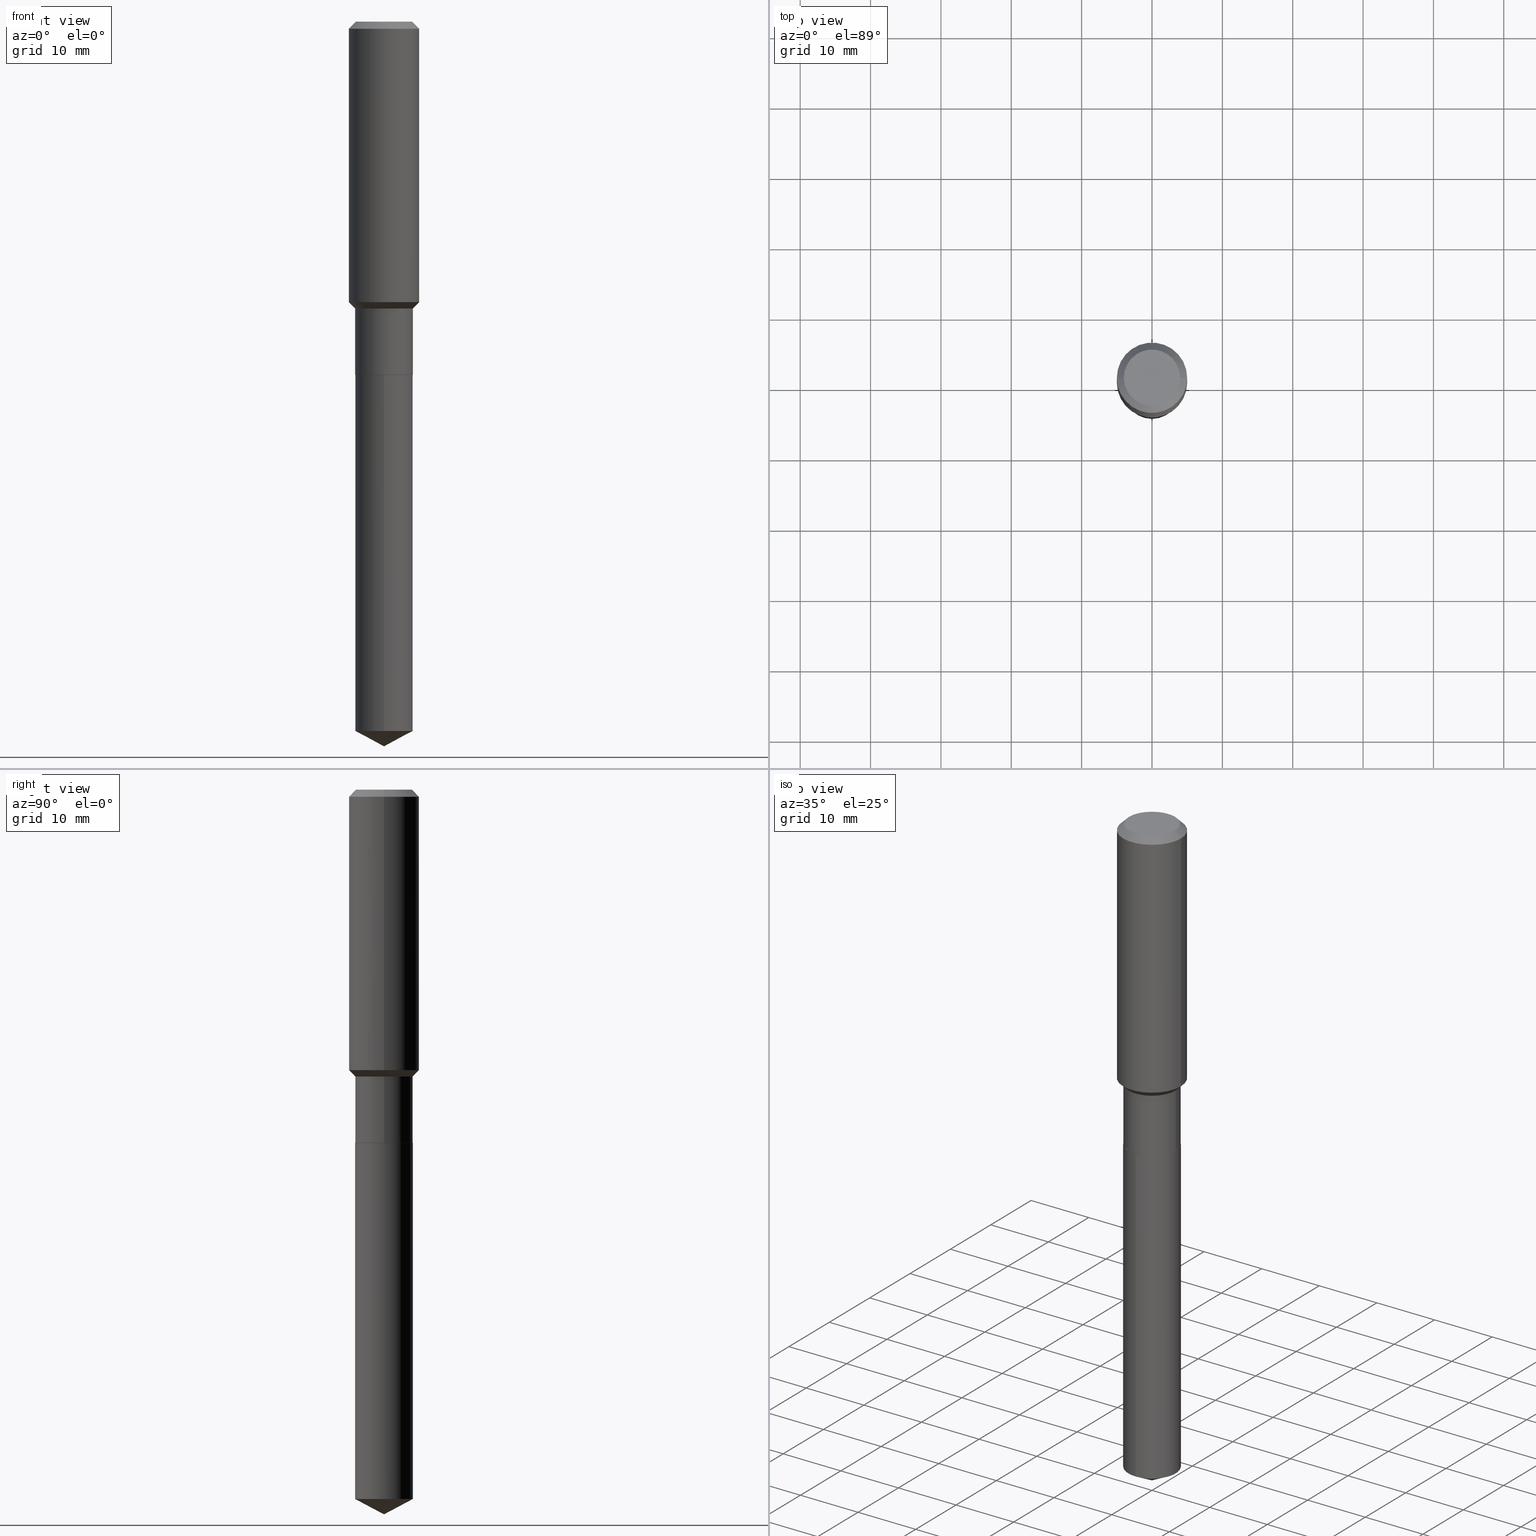
[diagram: canonical four-view strip — front | top / right | iso, engineering-drawing reading convention]
A machine part, canonical four-view strip (front | top / right | iso — engineering-drawing reading convention). The complete STEP part file that produces these views, byte-faithful:
ISO-10303-21;
HEADER;
FILE_DESCRIPTION (( 'STEP AP203' ),
    '1' );
FILE_NAME ('65212.STEP',
    '2024-04-24T21:26:46',
    ( '' ),
    ( '' ),
    'SwSTEP 2.0',
    'SolidWorks 2023',
    '' );
FILE_SCHEMA (( 'CONFIG_CONTROL_DESIGN' ));
ENDSEC;

DATA;
#1 = CONICAL_SURFACE ( 'NONE', #459, 0.1608999999999999875, 0.7853981633975849475 ) ;
#2 = CIRCLE ( 'NONE', #460, 0.1574800000000000089 ) ;
#3 = CARTESIAN_POINT ( 'NONE',  ( -0.1613999999999999602, -5.104506787614907823E-15, -1.605099999999999971 ) ) ;
#4 = CARTESIAN_POINT ( 'NONE',  ( -0.1968500000000002192, -4.081700308171384908E-15, -1.569649999999999990 ) ) ;
#5 = ORIENTED_EDGE ( 'NONE', *, *, #49, .F. ) ;
#6 = VECTOR ( 'NONE', #282, 39.37007874015748143 ) ;
#7 = DIRECTION ( 'NONE',  ( -2.445468806185136597E-29, 3.491481338843145583E-15, 1.000000000000000000 ) ) ;
#8 = MANIFOLD_SOLID_BREP ( 'Body-Move/Copy2[1]', #376 ) ;
#9 = CARTESIAN_POINT ( 'NONE',  ( 4.832980001663685166E-29, -6.900214569955707952E-15, -1.976299999999999946 ) ) ;
#10 = CC_DESIGN_PERSON_AND_ORGANIZATION_ASSIGNMENT ( #139, #286, ( #126 ) ) ;
#11 = CIRCLE ( 'NONE', #235, 0.1968500000000002192 ) ;
#12 = ORIENTED_EDGE ( 'NONE', *, *, #445, .T. ) ;
#13 = DIRECTION ( 'NONE',  ( 1.000000000000000000, -6.982962677686265922E-15, 0.000000000000000000 ) ) ;
#14 = ORIENTED_EDGE ( 'NONE', *, *, #216, .F. ) ;
#15 = EDGE_CURVE ( 'NONE', #20, #259, #249, .T. ) ;
#16 = ADVANCED_FACE ( 'NONE', ( #287 ), #71, .T. ) ;
#17 = CARTESIAN_POINT ( 'NONE',  ( 9.627810689950950651E-31, -1.374596203102555808E-16, -0.03937000000000027283 ) ) ;
#18 = EDGE_LOOP ( 'NONE', ( #316, #349 ) ) ;
#19 = FACE_OUTER_BOUND ( 'NONE', #347, .T. ) ;
#20 = VERTEX_POINT ( 'NONE', #33 ) ;
#21 = CIRCLE ( 'NONE', #245, 0.1968500000000000527 ) ;
#22 = ORIENTED_EDGE ( 'NONE', *, *, #314, .T. ) ;
#23 = APPROVAL_STATUS ( 'not_yet_approved' ) ;
#24 = DIRECTION ( 'NONE',  ( -2.445494769570250322E-29, 3.491444157797918677E-15, 1.000000000000000000 ) ) ;
#25 = AXIS2_PLACEMENT_3D ( 'NONE', #212, #438, #173 ) ;
#26 = UNCERTAINTY_MEASURE_WITH_UNIT (LENGTH_MEASURE( 1.000000000000000082E-05 ), #341, 'distance_accuracy_value', 'NONE');
#27 = APPROVAL_STATUS ( 'not_yet_approved' ) ;
#28 = EDGE_CURVE ( 'NONE', #409, #231, #288, .T. ) ;
#29 = LINE ( 'NONE', #480, #403 ) ;
#30 = AXIS2_PLACEMENT_3D ( 'NONE', #80, #377, #330 ) ;
#31 = APPROVAL_PERSON_ORGANIZATION ( #214, #381, #174 ) ;
#32 = APPLICATION_PROTOCOL_DEFINITION ( 'international standard', 'config_control_design', 1994, #195 ) ;
#33 = CARTESIAN_POINT ( 'NONE',  ( -0.1608999999999999875, -5.754302080943595246E-15, -1.976299999999999946 ) ) ;
#34 = DATE_AND_TIME ( #141, #300 ) ;
#35 = LINE ( 'NONE', #252, #292 ) ;
#36 = DIRECTION ( 'NONE',  ( 1.000000000000000000, -6.982962677686268288E-15, 0.000000000000000000 ) ) ;
#37 = AXIS2_PLACEMENT_3D ( 'NONE', #472, #7, #306 ) ;
#38 = DIRECTION ( 'NONE',  ( -2.445468806185136597E-29, 3.491481338843145583E-15, 1.000000000000000000 ) ) ;
#39 = DIRECTION ( 'NONE',  ( -6.982962677686266711E-15, -1.000000000000000000, 3.385189583227092077E-15 ) ) ;
#40 = ORIENTED_EDGE ( 'NONE', *, *, #274, .F. ) ;
#41 = CYLINDRICAL_SURFACE ( 'NONE', #410, 0.1613999999999999879 ) ;
#42 = AXIS2_PLACEMENT_3D ( 'NONE', #69, #290, #36 ) ;
#43 = VECTOR ( 'NONE', #362, 39.37007874015748143 ) ;
#44 = CONICAL_SURFACE ( 'NONE', #206, 0.1613999999999999602, 0.7853981633974517207 ) ;
#45 = DIRECTION ( 'NONE',  ( 1.000000000000000000, -6.982962677686266711E-15, 4.876176775795935793E-29 ) ) ;
#46 = DESIGN_CONTEXT ( 'detailed design', #241, 'design' ) ;
#47 = EDGE_CURVE ( 'NONE', #259, #162, #359, .T. ) ;
#48 = DIRECTION ( 'NONE',  ( 2.445494769570250322E-29, -3.491444157797918282E-15, -1.000000000000000000 ) ) ;
#49 = EDGE_CURVE ( 'NONE', #259, #231, #67, .T. ) ;
#50 = PLANE ( 'NONE',  #118 ) ;
#51 = ORIENTED_EDGE ( 'NONE', *, *, #15, .F. ) ;
#52 = CIRCLE ( 'NONE', #322, 0.1613999999999999879 ) ;
#53 = FACE_OUTER_BOUND ( 'NONE', #373, .T. ) ;
#54 = VECTOR ( 'NONE', #146, 39.37007874015748143 ) ;
#55 = VERTEX_POINT ( 'NONE', #444 ) ;
#56 = FACE_OUTER_BOUND ( 'NONE', #18, .T. ) ;
#57 = ORIENTED_EDGE ( 'NONE', *, *, #70, .T. ) ;
#58 = FACE_OUTER_BOUND ( 'NONE', #424, .T. ) ;
#59 = VERTEX_POINT ( 'NONE', #103 ) ;
#60 = ORIENTED_EDGE ( 'NONE', *, *, #308, .F. ) ;
#61 = CIRCLE ( 'NONE', #101, 0.1574800000000000089 ) ;
#62 = CALENDAR_DATE ( 2024, 24, 4 ) ;
#63 = DIRECTION ( 'NONE',  ( -6.982962677686266711E-15, -1.000000000000000000, 3.385189583227092077E-15 ) ) ;
#64 = CC_DESIGN_DATE_AND_TIME_ASSIGNMENT ( #181, #99, ( #126 ) ) ;
#65 = DIRECTION ( 'NONE',  ( 1.000000000000000000, 0.000000000000000000, 0.000000000000000000 ) ) ;
#66 = LINE ( 'NONE', #94, #184 ) ;
#67 = LINE ( 'NONE', #483, #360 ) ;
#68 = LOCAL_TIME ( 17, 26, 46.00000000000000000, #281 ) ;
#69 = CARTESIAN_POINT ( 'NONE',  ( 4.832980001663685166E-29, -6.900214569955707952E-15, -1.976299999999999946 ) ) ;
#70 = EDGE_CURVE ( 'NONE', #392, #356, #467, .T. ) ;
#71 = CYLINDRICAL_SURFACE ( 'NONE', #154, 0.1968500000000001082 ) ;
#72 = DIRECTION ( 'NONE',  ( -2.445468806185136597E-29, 3.491481338843145583E-15, 1.000000000000000000 ) ) ;
#73 = DIRECTION ( 'NONE',  ( 1.000000000000000000, -6.982962677686268288E-15, 0.000000000000000000 ) ) ;
#74 = ORIENTED_EDGE ( 'NONE', *, *, #70, .F. ) ;
#75 = CC_DESIGN_PERSON_AND_ORGANIZATION_ASSIGNMENT ( #102, #178, ( #298 ) ) ;
#76 = CARTESIAN_POINT ( 'NONE',  ( 0.1613999999999999879, -1.127050176178563330E-15, 7.870149316134639316E-30 ) ) ;
#77 = FACE_OUTER_BOUND ( 'NONE', #455, .T. ) ;
#78 = EDGE_CURVE ( 'NONE', #280, #20, #310, .T. ) ;
#79 = AXIS2_PLACEMENT_3D ( 'NONE', #140, #318, #440 ) ;
#80 = CARTESIAN_POINT ( 'NONE',  ( 3.925221980807762664E-29, -5.604176696977133215E-15, -1.605099999999999971 ) ) ;
#81 = CARTESIAN_POINT ( 'NONE',  ( 3.925221980807762664E-29, -5.604176696977133215E-15, -1.605099999999999971 ) ) ;
#82 = EDGE_LOOP ( 'NONE', ( #115, #380, #267, #60 ) ) ;
#83 = DIRECTION ( 'NONE',  ( 1.000000000000000000, -6.982962677686267499E-15, 0.000000000000000000 ) ) ;
#84 = ORIENTED_EDGE ( 'NONE', *, *, #151, .F. ) ;
#85 = VECTOR ( 'NONE', #454, 39.37007874015748143 ) ;
#86 = LENGTH_MEASURE_WITH_UNIT ( LENGTH_MEASURE( 0.02539999999999999897 ), #275 );
#87 = ORIENTED_EDGE ( 'NONE', *, *, #95, .F. ) ;
#88 = DIRECTION ( 'NONE',  ( 1.000000000000000000, -6.982962677686265922E-15, 0.000000000000000000 ) ) ;
#89 = ORIENTED_EDGE ( 'NONE', *, *, #271, .T. ) ;
#90 = ORIENTED_EDGE ( 'NONE', *, *, #419, .F. ) ;
#91 = CONICAL_SURFACE ( 'NONE', #117, 74.04434902938358221, 1.082104136236486713 ) ;
#92 = DIRECTION ( 'NONE',  ( -6.982962677686266711E-15, -1.000000000000000000, 3.385189583227092077E-15 ) ) ;
#93 = VECTOR ( 'NONE', #420, 39.37007874015748143 ) ;
#94 = CARTESIAN_POINT ( 'NONE',  ( 9.916623217208321436E-29, -1.415830216608570467E-14, -4.055100000000000371 ) ) ;
#95 = EDGE_CURVE ( 'NONE', #356, #392, #450, .T. ) ;
#96 = PERSON_AND_ORGANIZATION ( #208, #453 ) ;
#97 = ADVANCED_FACE ( 'NONE', ( #474 ), #432, .T. ) ;
#98 = CARTESIAN_POINT ( 'NONE',  ( 4.832980001663685166E-29, -6.900214569955707952E-15, -1.976299999999999946 ) ) ;
#99 = DATE_TIME_ROLE ( 'classification_date' ) ;
#100 = DIRECTION ( 'NONE',  ( -6.165590087286835240E-15, -0.8829475928589264333, 0.4694715627858918050 ) ) ;
#101 = AXIS2_PLACEMENT_3D ( 'NONE', #119, #239, #384 ) ;
#102 = PERSON_AND_ORGANIZATION ( #208, #453 ) ;
#103 = CARTESIAN_POINT ( 'NONE',  ( 0.1574800000000000089, -1.284169937930321386E-15, 3.855188123724205385E-18 ) ) ;
#104 = CARTESIAN_POINT ( 'NONE',  ( -0.1614000000000000157, -5.104506787614907823E-15, -1.975800000000000001 ) ) ;
#105 = ADVANCED_FACE ( 'NONE', ( #132 ), #441, .T. ) ;
#106 = DIRECTION ( 'NONE',  ( -2.445494769570250322E-29, 3.491444157797918677E-15, 1.000000000000000000 ) ) ;
#107 = EDGE_LOOP ( 'NONE', ( #5, #225, #273, #90 ) ) ;
#108 = CC_DESIGN_PERSON_AND_ORGANIZATION_ASSIGNMENT ( #96, #364, ( #471 ) ) ;
#109 = AXIS2_PLACEMENT_3D ( 'NONE', #317, #477, #65 ) ;
#110 = FACE_OUTER_BOUND ( 'NONE', #387, .T. ) ;
#111 = ORIENTED_EDGE ( 'NONE', *, *, #250, .F. ) ;
#112 = DIRECTION ( 'NONE',  ( -2.445468806185136597E-29, 3.491481338843145583E-15, 1.000000000000000000 ) ) ;
#113 = DIRECTION ( 'NONE',  ( -2.445494769570250322E-29, 3.491444157797918282E-15, 1.000000000000000000 ) ) ;
#114 = EDGE_CURVE ( 'NONE', #418, #356, #66, .T. ) ;
#115 = ORIENTED_EDGE ( 'NONE', *, *, #270, .T. ) ;
#116 = ADVANCED_BREP_SHAPE_REPRESENTATION ( '65212', ( #8, #338, #109 ), #345 ) ;
#117 = AXIS2_PLACEMENT_3D ( 'NONE', #215, #325, #367 ) ;
#118 = AXIS2_PLACEMENT_3D ( 'NONE', #9, #159, #230 ) ;
#119 = CARTESIAN_POINT ( 'NONE',  ( -9.427742298522567634E-47, 1.346031739168368355E-32, 3.855188123715870730E-18 ) ) ;
#120 = EDGE_LOOP ( 'NONE', ( #84, #40, #22, #309 ) ) ;
#121 = CYLINDRICAL_SURFACE ( 'NONE', #37, 0.1613999999999999879 ) ;
#122 = ORIENTED_EDGE ( 'NONE', *, *, #28, .T. ) ;
#123 = PRODUCT ( '65212', '65212', '', ( #366 ) ) ;
#124 = DIRECTION ( 'NONE',  ( -6.982962677686265922E-15, -1.000000000000000000, 3.541896320645558897E-15 ) ) ;
#125 = EDGE_LOOP ( 'NONE', ( #421, #89, #87 ) ) ;
#126 = SECURITY_CLASSIFICATION ( '', '', #284 ) ;
#127 = DIRECTION ( 'NONE',  ( 2.445468806185136597E-29, -3.491481338843145583E-15, -1.000000000000000000 ) ) ;
#128 = EDGE_LOOP ( 'NONE', ( #299, #194, #342, #423 ) ) ;
#129 = DIMENSIONAL_EXPONENTS ( 1.000000000000000000, 0.000000000000000000, 0.000000000000000000, 0.000000000000000000, 0.000000000000000000, 0.000000000000000000, 0.000000000000000000 ) ;
#130 = ORIENTED_EDGE ( 'NONE', *, *, #149, .F. ) ;
#131 = ADVANCED_FACE ( 'NONE', ( #255 ), #1, .T. ) ;
#132 = FACE_OUTER_BOUND ( 'NONE', #128, .T. ) ;
#133 = APPROVAL_DATE_TIME ( #34, #381 ) ;
#134 = DIRECTION ( 'NONE',  ( -2.445468806185136597E-29, 3.491481338843145583E-15, 1.000000000000000000 ) ) ;
#135 = EDGE_CURVE ( 'NONE', #203, #229, #244, .T. ) ;
#136 = ADVANCED_FACE ( 'NONE', ( #397 ), #91, .T. ) ;
#137 = APPROVAL_ROLE ( '' ) ;
#138 = DIRECTION ( 'NONE',  ( 0.7071067811865454633, -7.319954787623248157E-15, -0.7071067811865495711 ) ) ;
#139 = PERSON_AND_ORGANIZATION ( #208, #453 ) ;
#140 = CARTESIAN_POINT ( 'NONE',  ( 9.706807297509149291E-29, -1.385860027167039084E-14, -3.969282097729837755 ) ) ;
#141 = CALENDAR_DATE ( 2024, 24, 4 ) ;
#142 = DIRECTION ( 'NONE',  ( 1.000000000000000000, -6.982962677686266711E-15, 4.876176775795935793E-29 ) ) ;
#143 = AXIS2_PLACEMENT_3D ( 'NONE', #416, #378, #45 ) ;
#144 = CARTESIAN_POINT ( 'NONE',  ( 9.627810689950950651E-31, -1.374596203102555808E-16, -0.03937000000000027283 ) ) ;
#145 = CARTESIAN_POINT ( 'NONE',  ( -0.1968500000000000527, 1.237136582792286422E-15, -0.03937000000000027283 ) ) ;
#146 = DIRECTION ( 'NONE',  ( 6.273719981627766076E-15, 0.8829475928589297640, 0.4694715627858855878 ) ) ;
#147 = ORIENTED_EDGE ( 'NONE', *, *, #394, .T. ) ;
#148 = LOCAL_TIME ( 17, 26, 46.00000000000000000, #396 ) ;
#149 = EDGE_CURVE ( 'NONE', #198, #234, #436, .T. ) ;
#150 = DIRECTION ( 'NONE',  ( -0.7071067811865499042, 7.493145998870363626E-15, 0.7071067811865451302 ) ) ;
#151 = EDGE_CURVE ( 'NONE', #59, #307, #29, .T. ) ;
#152 = DIRECTION ( 'NONE',  ( 0.7071067811866441621, -2.468850131083269169E-15, 0.7071067811864508723 ) ) ;
#153 = EDGE_LOOP ( 'NONE', ( #14, #466, #147, #344 ) ) ;
#154 = AXIS2_PLACEMENT_3D ( 'NONE', #294, #256, #142 ) ;
#155 = DIRECTION ( 'NONE',  ( -6.982962677686266711E-15, -1.000000000000000000, 3.385189583227092077E-15 ) ) ;
#156 = EDGE_CURVE ( 'NONE', #55, #307, #35, .T. ) ;
#157 = CIRCLE ( 'NONE', #433, 0.1968500000000000527 ) ;
#158 = AXIS2_PLACEMENT_3D ( 'NONE', #242, #127, #426 ) ;
#159 = DIRECTION ( 'NONE',  ( -2.438088387897960049E-29, 3.491481338843145188E-15, 1.000000000000000000 ) ) ;
#160 = ORIENTED_EDGE ( 'NONE', *, *, #274, .T. ) ;
#161 = DIRECTION ( 'NONE',  ( -2.445468806185136597E-29, 3.491481338843145583E-15, 1.000000000000000000 ) ) ;
#162 = VERTEX_POINT ( 'NONE', #182 ) ;
#163 = EDGE_CURVE ( 'NONE', #356, #203, #328, .T. ) ;
#164 = CARTESIAN_POINT ( 'NONE',  ( 1.146815975516898841E-15, 0.1613999999999861656, -3.969282097729838643 ) ) ;
#165 = ORIENTED_EDGE ( 'NONE', *, *, #197, .F. ) ;
#166 = AXIS2_PLACEMENT_3D ( 'NONE', #258, #265, #73 ) ;
#167 = CARTESIAN_POINT ( 'NONE',  ( -8.636264710797770449E-28, 1.233002027241808654E-13, 35.31497874015747840 ) ) ;
#168 = ORIENTED_EDGE ( 'NONE', *, *, #197, .T. ) ;
#169 = APPROVAL ( #27, 'UNSPECIFIED' ) ;
#170 = PERSON_AND_ORGANIZATION ( #208, #453 ) ;
#171 = ORIENTED_EDGE ( 'NONE', *, *, #163, .T. ) ;
#172 = DATE_AND_TIME ( #443, #68 ) ;
#173 = DIRECTION ( 'NONE',  ( 1.000000000000000000, -6.982962677686267499E-15, 0.000000000000000000 ) ) ;
#174 = APPROVAL_ROLE ( '' ) ;
#175 = VECTOR ( 'NONE', #152, 39.37007874015748143 ) ;
#176 = DIRECTION ( 'NONE',  ( 1.000000000000000000, -6.982962677686265133E-15, 0.000000000000000000 ) ) ;
#177 = VECTOR ( 'NONE', #113, 39.37007874015748143 ) ;
#178 = PERSON_AND_ORGANIZATION_ROLE ( 'creator' ) ;
#179 = CARTESIAN_POINT ( 'NONE',  ( 4.831757267260592925E-29, -6.898468829286286448E-15, -1.975800000000000001 ) ) ;
#180 = EDGE_CURVE ( 'NONE', #280, #162, #488, .T. ) ;
#181 = DATE_AND_TIME ( #326, #313 ) ;
#182 = CARTESIAN_POINT ( 'NONE',  ( 0.1614000000000000157, -8.025519005464850173E-15, -1.975800000000000001 ) ) ;
#183 = CARTESIAN_POINT ( 'NONE',  ( 9.627810689950950651E-31, -1.374596203102555808E-16, -0.03937000000000027283 ) ) ;
#184 = VECTOR ( 'NONE', #100, 39.37007874015748143 ) ;
#185 = CC_DESIGN_PERSON_AND_ORGANIZATION_ASSIGNMENT ( #431, #355, ( #298 ) ) ;
#186 = LINE ( 'NONE', #76, #85 ) ;
#187 = VERTEX_POINT ( 'NONE', #297 ) ;
#188 = CARTESIAN_POINT ( 'NONE',  ( -0.1968500000000000527, -1.410228276568941153E-15, -0.03937000000000027283 ) ) ;
#189 = CARTESIAN_POINT ( 'NONE',  ( 0.1968500000000000527, -1.512055823412797583E-15, -0.03937000000000027283 ) ) ;
#190 = APPROVAL_PERSON_ORGANIZATION ( #170, #464, #137 ) ;
#191 = LINE ( 'NONE', #339, #177 ) ;
#192 = EDGE_LOOP ( 'NONE', ( #240, #269, #168, #205 ) ) ;
#193 = FACE_OUTER_BOUND ( 'NONE', #207, .T. ) ;
#194 = ORIENTED_EDGE ( 'NONE', *, *, #15, .T. ) ;
#195 = APPLICATION_CONTEXT ( 'configuration controlled 3d designs of mechanical parts and assemblies' ) ;
#196 = CARTESIAN_POINT ( 'NONE',  ( -1.127050176178466498E-15, -0.1614000000000138935, -3.969282097729837311 ) ) ;
#197 = EDGE_CURVE ( 'NONE', #307, #234, #157, .T. ) ;
#198 = VERTEX_POINT ( 'NONE', #4 ) ;
#199 = CIRCLE ( 'NONE', #226, 0.1614000000000000157 ) ;
#200 = DIRECTION ( 'NONE',  ( 1.000000000000000000, -6.982962677686266711E-15, 0.000000000000000000 ) ) ;
#201 = ORIENTED_EDGE ( 'NONE', *, *, #429, .F. ) ;
#202 = DIRECTION ( 'NONE',  ( -2.445468806185136597E-29, 3.491481338843145583E-15, 1.000000000000000000 ) ) ;
#203 = VERTEX_POINT ( 'NONE', #375 ) ;
#204 = CARTESIAN_POINT ( 'NONE',  ( 9.916725840084322943E-29, -1.415815520428634098E-14, -4.055100000000000371 ) ) ;
#205 = ORIENTED_EDGE ( 'NONE', *, *, #314, .F. ) ;
#206 = AXIS2_PLACEMENT_3D ( 'NONE', #408, #260, #457 ) ;
#207 = EDGE_LOOP ( 'NONE', ( #415, #243, #74 ) ) ;
#208 = PERSON ( 'UNSPECIFIED', 'UNSPECIFIED', 'UNSPECIFIED', ('UNSPECIFIED'), ('UNSPECIFIED'), ('UNSPECIFIED') ) ;
#209 = APPROVAL_DATE_TIME ( #439, #169 ) ;
#210 = CARTESIAN_POINT ( 'NONE',  ( 4.832980001663685166E-29, -6.900214569955707952E-15, -1.976299999999999946 ) ) ;
#211 =( NAMED_UNIT ( * ) SI_UNIT ( $, .STERADIAN. ) SOLID_ANGLE_UNIT ( ) );
#212 = CARTESIAN_POINT ( 'NONE',  ( 3.925221980807762664E-29, -5.604176696977133215E-15, -1.605099999999999971 ) ) ;
#213 = CARTESIAN_POINT ( 'NONE',  ( 4.832980001663685166E-29, -6.900214569955707952E-15, -1.976299999999999946 ) ) ;
#214 = PERSON_AND_ORGANIZATION ( #208, #453 ) ;
#215 = CARTESIAN_POINT ( 'NONE',  ( -8.636264710797770449E-28, 1.233002027241808654E-13, 35.31497874015747840 ) ) ;
#216 = EDGE_CURVE ( 'NONE', #231, #198, #448, .T. ) ;
#217 = CARTESIAN_POINT ( 'NONE',  ( 9.706807297509149291E-29, -1.385860027167039084E-14, -3.969282097729837755 ) ) ;
#218 = FACE_OUTER_BOUND ( 'NONE', #107, .T. ) ;
#219 = AXIS2_PLACEMENT_3D ( 'NONE', #272, #233, #315 ) ;
#220 = CARTESIAN_POINT ( 'NONE',  ( 0.1608999999999999875, -8.023773264795427881E-15, -1.976299999999999946 ) ) ;
#221 = EDGE_CURVE ( 'NONE', #229, #203, #52, .T. ) ;
#222 = ORIENTED_EDGE ( 'NONE', *, *, #78, .F. ) ;
#223 = LINE ( 'NONE', #145, #352 ) ;
#224 = CYLINDRICAL_SURFACE ( 'NONE', #143, 0.1968500000000001082 ) ;
#225 = ORIENTED_EDGE ( 'NONE', *, *, #47, .T. ) ;
#226 = AXIS2_PLACEMENT_3D ( 'NONE', #333, #112, #336 ) ;
#227 = CC_DESIGN_SECURITY_CLASSIFICATION ( #126, ( #298 ) ) ;
#228 = DIRECTION ( 'NONE',  ( -0.7071067811865454633, 2.468850131082235367E-15, -0.7071067811865495711 ) ) ;
#229 = VERTEX_POINT ( 'NONE', #302 ) ;
#230 = DIRECTION ( 'NONE',  ( 1.000000000000000000, -6.982962677686265922E-15, 4.876176775795935793E-29 ) ) ;
#231 = VERTEX_POINT ( 'NONE', #3 ) ;
#232 = ADVANCED_FACE ( 'NONE', ( #110 ), #451, .T. ) ;
#233 = DIRECTION ( 'NONE',  ( 2.438088387897960049E-29, -3.491481338843145188E-15, -1.000000000000000000 ) ) ;
#234 = VERTEX_POINT ( 'NONE', #188 ) ;
#235 = AXIS2_PLACEMENT_3D ( 'NONE', #386, #161, #13 ) ;
#236 = CARTESIAN_POINT ( 'NONE',  ( 4.832980001663685166E-29, -6.900214569955707952E-15, -1.976299999999999946 ) ) ;
#237 = ORIENTED_EDGE ( 'NONE', *, *, #321, .F. ) ;
#238 = ADVANCED_FACE ( 'NONE', ( #446 ), #44, .T. ) ;
#239 = DIRECTION ( 'NONE',  ( -2.445468806185136597E-29, 3.491481338843145583E-15, 1.000000000000000000 ) ) ;
#240 = ORIENTED_EDGE ( 'NONE', *, *, #445, .F. ) ;
#241 = APPLICATION_CONTEXT ( 'configuration controlled 3d designs of mechanical parts and assemblies' ) ;
#242 = CARTESIAN_POINT ( 'NONE',  ( 9.627810689950950651E-31, -1.374596203102555808E-16, -0.03937000000000027283 ) ) ;
#243 = ORIENTED_EDGE ( 'NONE', *, *, #114, .T. ) ;
#244 = CIRCLE ( 'NONE', #304, 0.1613999999999999879 ) ;
#245 = AXIS2_PLACEMENT_3D ( 'NONE', #17, #202, #200 ) ;
#246 = APPROVAL_ROLE ( '' ) ;
#247 = DIRECTION ( 'NONE',  ( 1.000000000000000000, -6.982962677686268288E-15, 0.000000000000000000 ) ) ;
#248 = COORDINATED_UNIVERSAL_TIME_OFFSET ( 5, 0, .BEHIND. ) ;
#249 = LINE ( 'NONE', #402, #6 ) ;
#250 = EDGE_CURVE ( 'NONE', #20, #280, #404, .T. ) ;
#251 = ADVANCED_FACE ( 'NONE', ( #218 ), #41, .T. ) ;
#252 = CARTESIAN_POINT ( 'NONE',  ( 0.1968500000000001082, -1.374596203102542397E-15, 9.598753983154305062E-30 ) ) ;
#253 = APPROVAL_DATE_TIME ( #482, #464 ) ;
#254 = CC_DESIGN_APPROVAL ( #464, ( #126 ) ) ;
#255 = FACE_OUTER_BOUND ( 'NONE', #473, .T. ) ;
#256 = DIRECTION ( 'NONE',  ( -2.445468806185136597E-29, 3.491481338843145583E-15, 1.000000000000000000 ) ) ;
#257 = CC_DESIGN_DATE_AND_TIME_ASSIGNMENT ( #172, #361, ( #471 ) ) ;
#258 = CARTESIAN_POINT ( 'NONE',  ( 4.832980001663685166E-29, -6.900214569955707952E-15, -1.976299999999999946 ) ) ;
#259 = VERTEX_POINT ( 'NONE', #104 ) ;
#260 = DIRECTION ( 'NONE',  ( -2.445468806185136597E-29, 3.491481338843145583E-15, 1.000000000000000000 ) ) ;
#261 = ORIENTED_EDGE ( 'NONE', *, *, #394, .F. ) ;
#262 = CIRCLE ( 'NONE', #434, 0.1613999999999999602 ) ;
#263 = DIRECTION ( 'NONE',  ( -2.445468806185136597E-29, 3.491481338843145583E-15, 1.000000000000000000 ) ) ;
#264 = ORIENTED_EDGE ( 'NONE', *, *, #321, .T. ) ;
#265 = DIRECTION ( 'NONE',  ( -2.445468806185136597E-29, 3.491481338843145583E-15, 1.000000000000000000 ) ) ;
#266 = CARTESIAN_POINT ( 'NONE',  ( 4.832980001663685166E-29, -6.900214569955707952E-15, -1.976299999999999946 ) ) ;
#267 = ORIENTED_EDGE ( 'NONE', *, *, #28, .F. ) ;
#268 = CARTESIAN_POINT ( 'NONE',  ( 4.832980001663685166E-29, -6.900214569955707952E-15, -1.976299999999999946 ) ) ;
#269 = ORIENTED_EDGE ( 'NONE', *, *, #151, .T. ) ;
#270 = EDGE_CURVE ( 'NONE', #162, #259, #199, .T. ) ;
#271 = EDGE_CURVE ( 'NONE', #418, #392, #490, .T. ) ;
#272 = CARTESIAN_POINT ( 'NONE',  ( -4.713871149261283817E-47, 6.730158695841841775E-33, 1.927594061857935365E-18 ) ) ;
#273 = ORIENTED_EDGE ( 'NONE', *, *, #308, .T. ) ;
#274 = EDGE_CURVE ( 'NONE', #187, #59, #2, .T. ) ;
#275 =( LENGTH_UNIT ( ) NAMED_UNIT ( * ) SI_UNIT ( $, .METRE. ) );
#276 = ORIENTED_EDGE ( 'NONE', *, *, #135, .F. ) ;
#277 = PLANE ( 'NONE',  #395 ) ;
#278 = ORIENTED_EDGE ( 'NONE', *, *, #429, .T. ) ;
#279 = PLANE ( 'NONE',  #219 ) ;
#280 = VERTEX_POINT ( 'NONE', #489 ) ;
#281 = COORDINATED_UNIVERSAL_TIME_OFFSET ( 5, 0, .BEHIND. ) ;
#282 = DIRECTION ( 'NONE',  ( -0.7071067811866441621, 7.493145998870704414E-15, 0.7071067811864508723 ) ) ;
#283 = AXIS2_PLACEMENT_3D ( 'NONE', #98, #134, #285 ) ;
#284 = SECURITY_CLASSIFICATION_LEVEL ( 'unclassified' ) ;
#285 = DIRECTION ( 'NONE',  ( 1.000000000000000000, -6.982962677686268288E-15, 0.000000000000000000 ) ) ;
#286 = PERSON_AND_ORGANIZATION_ROLE ( 'classification_officer' ) ;
#287 = FACE_OUTER_BOUND ( 'NONE', #449, .T. ) ;
#288 = CIRCLE ( 'NONE', #25, 0.1613999999999999602 ) ;
#289 = PERSON_AND_ORGANIZATION ( #208, #453 ) ;
#290 = DIRECTION ( 'NONE',  ( -2.445468806185136597E-29, 3.491481338843145583E-15, 1.000000000000000000 ) ) ;
#291 = PERSON_AND_ORGANIZATION ( #208, #453 ) ;
#292 = VECTOR ( 'NONE', #365, 39.37007874015748143 ) ;
#293 = AXIS2_PLACEMENT_3D ( 'NONE', #183, #329, #348 ) ;
#294 = CARTESIAN_POINT ( 'NONE',  ( 0.000000000000000000, 0.000000000000000000, 0.000000000000000000 ) ) ;
#295 = DIRECTION ( 'NONE',  ( 1.000000000000000000, -6.982962677686266711E-15, 4.876176775795935232E-29 ) ) ;
#296 = DIRECTION ( 'NONE',  ( -2.445494769570250322E-29, 3.491444157797918282E-15, 1.000000000000000000 ) ) ;
#297 = CARTESIAN_POINT ( 'NONE',  ( -0.1574800000000000089, 1.168406772637159815E-15, 3.855188123707939751E-18 ) ) ;
#298 = PRODUCT_DEFINITION_FORMATION_WITH_SPECIFIED_SOURCE ( 'ANY', '', #123, .NOT_KNOWN. ) ;
#299 = ORIENTED_EDGE ( 'NONE', *, *, #78, .T. ) ;
#300 = LOCAL_TIME ( 17, 26, 46.00000000000000000, #248 ) ;
#301 = DIRECTION ( 'NONE',  ( 1.000000000000000000, -6.982962677686266711E-15, 0.000000000000000000 ) ) ;
#302 = CARTESIAN_POINT ( 'NONE',  ( 1.146815975516898841E-15, 0.1613999999999930768, -1.976300000000000390 ) ) ;
#303 = CARTESIAN_POINT ( 'NONE',  ( 3.838530111628499967E-29, -5.480403683515143485E-15, -1.569649999999999990 ) ) ;
#304 = AXIS2_PLACEMENT_3D ( 'NONE', #213, #24, #63 ) ;
#305 = AXIS2_PLACEMENT_3D ( 'NONE', #236, #465, #155 ) ;
#306 = DIRECTION ( 'NONE',  ( 1.000000000000000000, -6.982962677686266711E-15, 4.876176775795935232E-29 ) ) ;
#307 = VERTEX_POINT ( 'NONE', #189 ) ;
#308 = EDGE_CURVE ( 'NONE', #162, #409, #186, .T. ) ;
#309 = ORIENTED_EDGE ( 'NONE', *, *, #354, .T. ) ;
#310 = CIRCLE ( 'NONE', #42, 0.1608999999999999875 ) ;
#311 = LINE ( 'NONE', #468, #93 ) ;
#312 = ORIENTED_EDGE ( 'NONE', *, *, #149, .T. ) ;
#313 = LOCAL_TIME ( 17, 26, 46.00000000000000000, #435 ) ;
#314 = EDGE_CURVE ( 'NONE', #187, #234, #223, .T. ) ;
#315 = DIRECTION ( 'NONE',  ( -1.000000000000000000, 6.982962677686265922E-15, -4.876176775795935793E-29 ) ) ;
#316 = ORIENTED_EDGE ( 'NONE', *, *, #135, .T. ) ;
#317 = CARTESIAN_POINT ( 'NONE',  ( 0.000000000000000000, 0.000000000000000000, 0.000000000000000000 ) ) ;
#318 = DIRECTION ( 'NONE',  ( -2.445494769570250322E-29, 3.491444157797918677E-15, 1.000000000000000000 ) ) ;
#319 = ADVANCED_FACE ( 'NONE', ( #77 ), #224, .T. ) ;
#320 = CARTESIAN_POINT ( 'NONE',  ( 4.832980001663685166E-29, -6.900214569955707952E-15, -1.976299999999999946 ) ) ;
#321 = EDGE_CURVE ( 'NONE', #392, #229, #191, .T. ) ;
#322 = AXIS2_PLACEMENT_3D ( 'NONE', #266, #106, #39 ) ;
#323 = CIRCLE ( 'NONE', #442, 0.1968500000000002192 ) ;
#324 = APPROVAL_STATUS ( 'not_yet_approved' ) ;
#325 = DIRECTION ( 'NONE',  ( -2.445494769570250322E-29, 3.491444157797918677E-15, 1.000000000000000000 ) ) ;
#326 = CALENDAR_DATE ( 2024, 24, 4 ) ;
#327 = DIRECTION ( 'NONE',  ( -2.445468806185136597E-29, 3.491481338843145583E-15, 1.000000000000000000 ) ) ;
#328 = LINE ( 'NONE', #485, #370 ) ;
#329 = DIRECTION ( 'NONE',  ( 2.445468806185136597E-29, -3.491481338843145583E-15, -1.000000000000000000 ) ) ;
#330 = DIRECTION ( 'NONE',  ( 1.000000000000000000, -6.982962677686267499E-15, 0.000000000000000000 ) ) ;
#331 = ORIENTED_EDGE ( 'NONE', *, *, #250, .T. ) ;
#332 = CLOSED_SHELL ( 'NONE', ( #105, #399, #319, #232, #475, #251, #238, #16, #340, #481, #458, #131 ) ) ;
#333 = CARTESIAN_POINT ( 'NONE',  ( 4.831757267260592925E-29, -6.898468829286286448E-15, -1.975800000000000001 ) ) ;
#334 = CC_DESIGN_PERSON_AND_ORGANIZATION_ASSIGNMENT ( #291, #398, ( #123 ) ) ;
#335 = ORIENTED_EDGE ( 'NONE', *, *, #156, .F. ) ;
#336 = DIRECTION ( 'NONE',  ( 1.000000000000000000, -6.982962677686265133E-15, 0.000000000000000000 ) ) ;
#337 = CC_DESIGN_APPROVAL ( #169, ( #298 ) ) ;
#338 = MANIFOLD_SOLID_BREP ( 'Body-Move/Copy2[2]', #332 ) ;
#339 = CARTESIAN_POINT ( 'NONE',  ( 1.146815975516849537E-15, 0.1613999999999930768, -1.976300000000000390 ) ) ;
#340 = ADVANCED_FACE ( 'NONE', ( #382 ), #417, .T. ) ;
#341 =( CONVERSION_BASED_UNIT ( 'INCH', #86 ) LENGTH_UNIT ( ) NAMED_UNIT ( #129 ) );
#342 = ORIENTED_EDGE ( 'NONE', *, *, #270, .F. ) ;
#343 = FACE_OUTER_BOUND ( 'NONE', #192, .T. ) ;
#344 = ORIENTED_EDGE ( 'NONE', *, *, #487, .F. ) ;
#345 =( GEOMETRIC_REPRESENTATION_CONTEXT ( 3 ) GLOBAL_UNCERTAINTY_ASSIGNED_CONTEXT ( ( #26 ) ) GLOBAL_UNIT_ASSIGNED_CONTEXT ( ( #341, #479, #211 ) ) REPRESENTATION_CONTEXT ( 'NONE', 'WORKASPACE' ) );
#346 = DIRECTION ( 'NONE',  ( 6.982962677686265922E-15, 1.000000000000000000, -3.491444157797918282E-15 ) ) ;
#347 = EDGE_LOOP ( 'NONE', ( #463, #264, #276, #412 ) ) ;
#348 = DIRECTION ( 'NONE',  ( -1.000000000000000000, 6.982962677686266711E-15, 0.000000000000000000 ) ) ;
#349 = ORIENTED_EDGE ( 'NONE', *, *, #221, .T. ) ;
#350 = DIRECTION ( 'NONE',  ( -2.445468806185136597E-29, 3.491481338843145583E-15, 1.000000000000000000 ) ) ;
#351 = ORIENTED_EDGE ( 'NONE', *, *, #47, .F. ) ;
#352 = VECTOR ( 'NONE', #228, 39.37007874015748143 ) ;
#353 = PRODUCT_DEFINITION_SHAPE ( 'NONE', 'NONE',  #471 ) ;
#354 = EDGE_CURVE ( 'NONE', #234, #307, #21, .T. ) ;
#355 = PERSON_AND_ORGANIZATION_ROLE ( 'design_supplier' ) ;
#356 = VERTEX_POINT ( 'NONE', #196 ) ;
#357 = APPLICATION_PROTOCOL_DEFINITION ( 'international standard', 'config_control_design', 1994, #241 ) ;
#358 = DIRECTION ( 'NONE',  ( -2.445468806185136877E-29, 3.491481338843145188E-15, 1.000000000000000000 ) ) ;
#359 = CIRCLE ( 'NONE', #476, 0.1614000000000000157 ) ;
#360 = VECTOR ( 'NONE', #358, 39.37007874015748143 ) ;
#361 = DATE_TIME_ROLE ( 'creation_date' ) ;
#362 = DIRECTION ( 'NONE',  ( -2.445468806185136877E-29, 3.491481338843145188E-15, 1.000000000000000000 ) ) ;
#363 = APPROVAL_PERSON_ORGANIZATION ( #289, #169, #246 ) ;
#364 = PERSON_AND_ORGANIZATION_ROLE ( 'creator' ) ;
#365 = DIRECTION ( 'NONE',  ( -2.445468806185136877E-29, 3.491481338843145188E-15, 1.000000000000000000 ) ) ;
#366 = MECHANICAL_CONTEXT ( 'NONE', #195, 'mechanical' ) ;
#367 = DIRECTION ( 'NONE',  ( -6.982962677686265922E-15, -1.000000000000000000, 3.541896320645558897E-15 ) ) ;
#368 = ADVANCED_FACE ( 'NONE', ( #56 ), #277, .F. ) ;
#369 = DIRECTION ( 'NONE',  ( -6.982962677686266711E-15, -1.000000000000000000, 3.385189583227092077E-15 ) ) ;
#370 = VECTOR ( 'NONE', #296, 39.37007874015748143 ) ;
#371 = CONICAL_SURFACE ( 'NONE', #158, 0.1968500000000000527, 0.7853981633974453924 ) ;
#372 = DIRECTION ( 'NONE',  ( 1.000000000000000000, -6.982962677686265922E-15, 4.876223630392693006E-29 ) ) ;
#373 = EDGE_LOOP ( 'NONE', ( #222, #111 ) ) ;
#374 = PRODUCT_RELATED_PRODUCT_CATEGORY ( 'detail', '', ( #123 ) ) ;
#375 = CARTESIAN_POINT ( 'NONE',  ( -1.127050176178515013E-15, -0.1614000000000068713, -1.976299999999999280 ) ) ;
#376 = CLOSED_SHELL ( 'NONE', ( #383, #136, #447, #97, #368 ) ) ;
#377 = DIRECTION ( 'NONE',  ( -2.445468806185136597E-29, 3.491481338843145583E-15, 1.000000000000000000 ) ) ;
#378 = DIRECTION ( 'NONE',  ( -2.445468806185136597E-29, 3.491481338843145583E-15, 1.000000000000000000 ) ) ;
#379 = AXIS2_PLACEMENT_3D ( 'NONE', #167, #428, #124 ) ;
#380 = ORIENTED_EDGE ( 'NONE', *, *, #49, .T. ) ;
#381 = APPROVAL ( #23, 'UNSPECIFIED' ) ;
#382 = FACE_OUTER_BOUND ( 'NONE', #120, .T. ) ;
#383 = ADVANCED_FACE ( 'NONE', ( #19 ), #389, .T. ) ;
#384 = DIRECTION ( 'NONE',  ( 1.000000000000000000, -6.982962677686265922E-15, 4.876223630392693006E-29 ) ) ;
#385 = ORIENTED_EDGE ( 'NONE', *, *, #180, .T. ) ;
#386 = CARTESIAN_POINT ( 'NONE',  ( 3.838530111628499967E-29, -5.480403683515143485E-15, -1.569649999999999990 ) ) ;
#387 = EDGE_LOOP ( 'NONE', ( #122, #469, #201, #261 ) ) ;
#388 = CONICAL_SURFACE ( 'NONE', #379, 74.04434902938358221, 1.082104136236486713 ) ;
#389 = CYLINDRICAL_SURFACE ( 'NONE', #305, 0.1613999999999999879 ) ;
#390 = ORIENTED_EDGE ( 'NONE', *, *, #156, .T. ) ;
#391 = FACE_OUTER_BOUND ( 'NONE', #82, .T. ) ;
#392 = VERTEX_POINT ( 'NONE', #164 ) ;
#393 = ORIENTED_EDGE ( 'NONE', *, *, #354, .F. ) ;
#394 = EDGE_CURVE ( 'NONE', #409, #55, #311, .T. ) ;
#395 = AXIS2_PLACEMENT_3D ( 'NONE', #268, #48, #346 ) ;
#396 = COORDINATED_UNIVERSAL_TIME_OFFSET ( 5, 0, .BEHIND. ) ;
#397 = FACE_OUTER_BOUND ( 'NONE', #125, .T. ) ;
#398 = PERSON_AND_ORGANIZATION_ROLE ( 'design_owner' ) ;
#399 = ADVANCED_FACE ( 'NONE', ( #343 ), #371, .T. ) ;
#400 = CARTESIAN_POINT ( 'NONE',  ( -0.1968500000000001082, 1.398703375343757985E-15, -9.682923725166787881E-30 ) ) ;
#401 = COORDINATED_UNIVERSAL_TIME_OFFSET ( 5, 0, .BEHIND. ) ;
#402 = CARTESIAN_POINT ( 'NONE',  ( -0.1608999999999999875, -5.756951308117706447E-15, -1.976299999999999946 ) ) ;
#403 = VECTOR ( 'NONE', #138, 39.37007874015748143 ) ;
#404 = CIRCLE ( 'NONE', #166, 0.1608999999999999875 ) ;
#405 = SHAPE_DEFINITION_REPRESENTATION ( #353, #116 ) ;
#406 = DIRECTION ( 'NONE',  ( -2.445468806185136597E-29, 3.491481338843145583E-15, 1.000000000000000000 ) ) ;
#407 = DIRECTION ( 'NONE',  ( -2.445494769570250322E-29, 3.491444157797918677E-15, 1.000000000000000000 ) ) ;
#408 = CARTESIAN_POINT ( 'NONE',  ( 3.925221980807762664E-29, -5.604176696977133215E-15, -1.605099999999999971 ) ) ;
#409 = VERTEX_POINT ( 'NONE', #462 ) ;
#410 = AXIS2_PLACEMENT_3D ( 'NONE', #456, #263, #295 ) ;
#411 = CARTESIAN_POINT ( 'NONE',  ( -0.1613999999999999602, -4.457360721460331601E-15, -1.605099999999999971 ) ) ;
#412 = ORIENTED_EDGE ( 'NONE', *, *, #163, .F. ) ;
#413 = CARTESIAN_POINT ( 'NONE',  ( 9.916726739965808801E-29, -1.415815520428634098E-14, -4.055100000000000371 ) ) ;
#414 = CARTESIAN_POINT ( 'NONE',  ( -9.427742298522567634E-47, 1.346031739168368355E-32, 3.855188123715870730E-18 ) ) ;
#415 = ORIENTED_EDGE ( 'NONE', *, *, #271, .F. ) ;
#416 = CARTESIAN_POINT ( 'NONE',  ( 0.000000000000000000, 0.000000000000000000, 0.000000000000000000 ) ) ;
#417 = CONICAL_SURFACE ( 'NONE', #293, 0.1968500000000000527, 0.7853981633974453924 ) ;
#418 = VERTEX_POINT ( 'NONE', #204 ) ;
#419 = EDGE_CURVE ( 'NONE', #231, #409, #262, .T. ) ;
#420 = DIRECTION ( 'NONE',  ( 0.7071067811865499042, -2.468850131082281515E-15, 0.7071067811865451302 ) ) ;
#421 = ORIENTED_EDGE ( 'NONE', *, *, #114, .F. ) ;
#422 = DIRECTION ( 'NONE',  ( -2.445468806185136597E-29, 3.491481338843145583E-15, 1.000000000000000000 ) ) ;
#423 = ORIENTED_EDGE ( 'NONE', *, *, #180, .F. ) ;
#424 = EDGE_LOOP ( 'NONE', ( #160, #12 ) ) ;
#425 = CC_DESIGN_APPROVAL ( #381, ( #471 ) ) ;
#426 = DIRECTION ( 'NONE',  ( -1.000000000000000000, 6.982962677686266711E-15, 0.000000000000000000 ) ) ;
#427 = EDGE_LOOP ( 'NONE', ( #237, #57, #171, #461 ) ) ;
#428 = DIRECTION ( 'NONE',  ( -2.445494769570250322E-29, 3.491444157797918677E-15, 1.000000000000000000 ) ) ;
#429 = EDGE_CURVE ( 'NONE', #55, #198, #323, .T. ) ;
#430 = ORIENTED_EDGE ( 'NONE', *, *, #487, .T. ) ;
#431 = PERSON_AND_ORGANIZATION ( #208, #453 ) ;
#432 = CYLINDRICAL_SURFACE ( 'NONE', #486, 0.1613999999999999879 ) ;
#433 = AXIS2_PLACEMENT_3D ( 'NONE', #144, #72, #301 ) ;
#434 = AXIS2_PLACEMENT_3D ( 'NONE', #81, #350, #83 ) ;
#435 = COORDINATED_UNIVERSAL_TIME_OFFSET ( 5, 0, .BEHIND. ) ;
#436 = LINE ( 'NONE', #400, #43 ) ;
#437 = CALENDAR_DATE ( 2024, 24, 4 ) ;
#438 = DIRECTION ( 'NONE',  ( -2.445468806185136597E-29, 3.491481338843145583E-15, 1.000000000000000000 ) ) ;
#439 = DATE_AND_TIME ( #62, #148 ) ;
#440 = DIRECTION ( 'NONE',  ( -6.982962677686266711E-15, -1.000000000000000000, 3.385189583227092077E-15 ) ) ;
#441 = CONICAL_SURFACE ( 'NONE', #283, 0.1608999999999999875, 0.7853981633975849475 ) ;
#442 = AXIS2_PLACEMENT_3D ( 'NONE', #303, #422, #88 ) ;
#443 = CALENDAR_DATE ( 2024, 24, 4 ) ;
#444 = CARTESIAN_POINT ( 'NONE',  ( 0.1968500000000002192, -6.854999886617686671E-15, -1.569649999999999990 ) ) ;
#445 = EDGE_CURVE ( 'NONE', #59, #187, #61, .T. ) ;
#446 = FACE_OUTER_BOUND ( 'NONE', #153, .T. ) ;
#447 = ADVANCED_FACE ( 'NONE', ( #193 ), #388, .T. ) ;
#448 = LINE ( 'NONE', #411, #452 ) ;
#449 = EDGE_LOOP ( 'NONE', ( #130, #430, #390, #393 ) ) ;
#450 = CIRCLE ( 'NONE', #79, 0.1613999999999999879 ) ;
#451 = CONICAL_SURFACE ( 'NONE', #30, 0.1613999999999999602, 0.7853981633974517207 ) ;
#452 = VECTOR ( 'NONE', #150, 39.37007874015748143 ) ;
#453 = ORGANIZATION ( 'UNSPECIFIED', 'UNSPECIFIED', '' ) ;
#454 = DIRECTION ( 'NONE',  ( -2.445468806185136877E-29, 3.491481338843145188E-15, 1.000000000000000000 ) ) ;
#455 = EDGE_LOOP ( 'NONE', ( #278, #312, #165, #335 ) ) ;
#456 = CARTESIAN_POINT ( 'NONE',  ( 0.000000000000000000, 0.000000000000000000, 0.000000000000000000 ) ) ;
#457 = DIRECTION ( 'NONE',  ( 1.000000000000000000, -6.982962677686267499E-15, 0.000000000000000000 ) ) ;
#458 = ADVANCED_FACE ( 'NONE', ( #53 ), #50, .F. ) ;
#459 = AXIS2_PLACEMENT_3D ( 'NONE', #210, #406, #247 ) ;
#460 = AXIS2_PLACEMENT_3D ( 'NONE', #414, #38, #372 ) ;
#461 = ORIENTED_EDGE ( 'NONE', *, *, #221, .F. ) ;
#462 = CARTESIAN_POINT ( 'NONE',  ( 0.1613999999999999602, -6.731226873155696151E-15, -1.605099999999999971 ) ) ;
#463 = ORIENTED_EDGE ( 'NONE', *, *, #95, .T. ) ;
#464 = APPROVAL ( #324, 'UNSPECIFIED' ) ;
#465 = DIRECTION ( 'NONE',  ( -2.445494769570250322E-29, 3.491444157797918677E-15, 1.000000000000000000 ) ) ;
#466 = ORIENTED_EDGE ( 'NONE', *, *, #419, .T. ) ;
#467 = CIRCLE ( 'NONE', #484, 0.1613999999999999879 ) ;
#468 = CARTESIAN_POINT ( 'NONE',  ( 0.1613999999999999602, -6.731226873155696151E-15, -1.605099999999999971 ) ) ;
#469 = ORIENTED_EDGE ( 'NONE', *, *, #216, .T. ) ;
#470 = LOCAL_TIME ( 17, 26, 46.00000000000000000, #401 ) ;
#471 = PRODUCT_DEFINITION ( 'UNKNOWN', '', #298, #46 ) ;
#472 = CARTESIAN_POINT ( 'NONE',  ( 0.000000000000000000, 0.000000000000000000, 0.000000000000000000 ) ) ;
#473 = EDGE_LOOP ( 'NONE', ( #51, #331, #385, #351 ) ) ;
#474 = FACE_OUTER_BOUND ( 'NONE', #427, .T. ) ;
#475 = ADVANCED_FACE ( 'NONE', ( #391 ), #121, .T. ) ;
#476 = AXIS2_PLACEMENT_3D ( 'NONE', #179, #327, #176 ) ;
#477 = DIRECTION ( 'NONE',  ( 0.000000000000000000, 0.000000000000000000, 1.000000000000000000 ) ) ;
#478 = DIRECTION ( 'NONE',  ( -2.445494769570250322E-29, 3.491444157797918677E-15, 1.000000000000000000 ) ) ;
#479 =( NAMED_UNIT ( * ) PLANE_ANGLE_UNIT ( ) SI_UNIT ( $, .RADIAN. ) );
#480 = CARTESIAN_POINT ( 'NONE',  ( 0.1968500000000000527, -1.487948651171581996E-15, -0.03937000000000027283 ) ) ;
#481 = ADVANCED_FACE ( 'NONE', ( #58 ), #279, .F. ) ;
#482 = DATE_AND_TIME ( #437, #470 ) ;
#483 = CARTESIAN_POINT ( 'NONE',  ( -0.1613999999999999879, 1.146815975516801614E-15, -7.939161235671417487E-30 ) ) ;
#484 = AXIS2_PLACEMENT_3D ( 'NONE', #217, #407, #369 ) ;
#485 = CARTESIAN_POINT ( 'NONE',  ( -1.127050176178515013E-15, -0.1614000000000068713, -1.976299999999999280 ) ) ;
#486 = AXIS2_PLACEMENT_3D ( 'NONE', #320, #478, #92 ) ;
#487 = EDGE_CURVE ( 'NONE', #198, #55, #11, .T. ) ;
#488 = LINE ( 'NONE', #220, #175 ) ;
#489 = CARTESIAN_POINT ( 'NONE',  ( 0.1608999999999999875, -8.023773264795427881E-15, -1.976299999999999946 ) ) ;
#490 = LINE ( 'NONE', #413, #54 ) ;
ENDSEC;
END-ISO-10303-21;
